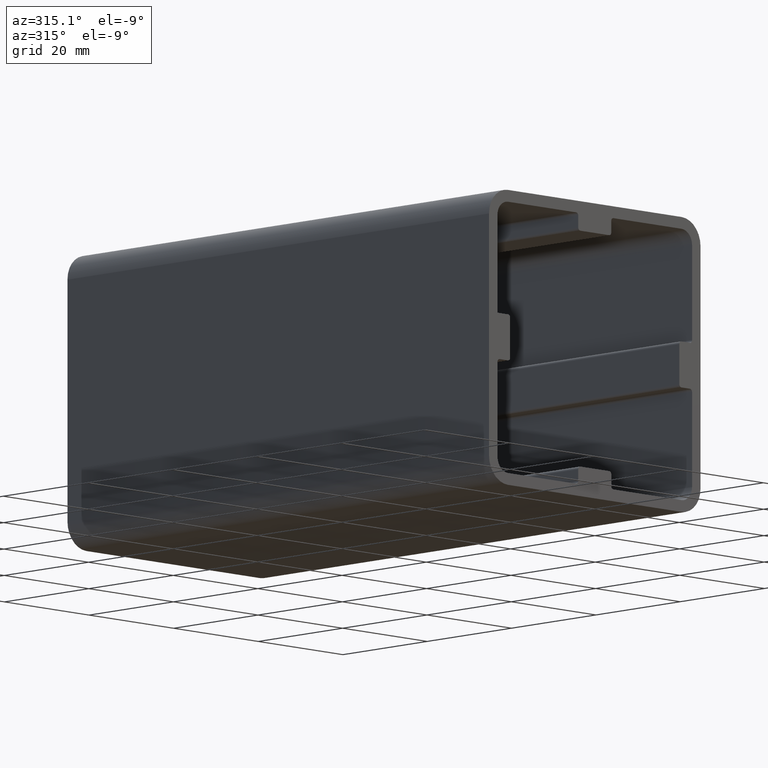
[diagram: clean part render]
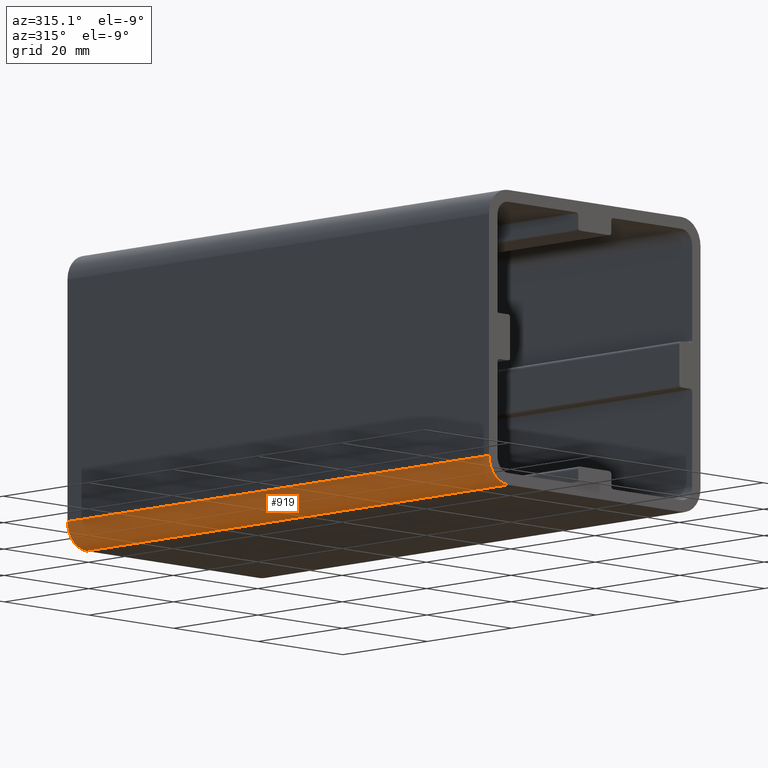
[diagram: same view with one face highlighted and labeled with its STEP entity id]
A machine part, auxiliary view. The second image highlights one B-rep face of the part: STEP entity #919.
In plain terms, the highlighted cylindrical surface (edge-blend (fillet) strip) has radius 4.5 mm, axis along (0, 1, 0).
Its self-contained STEP definition (entity closure, byte-faithful):
#43=FACE_OUTER_BOUND('',#92,.T.);
#92=EDGE_LOOP('',(#614,#615,#616,#617));
#143=LINE('',#1376,#238);
#144=LINE('',#1379,#239);
#238=VECTOR('',#1089,10.);
#239=VECTOR('',#1092,10.);
#333=CIRCLE('',#989,4.5);
#334=CIRCLE('',#990,4.5);
#379=VERTEX_POINT('',#1372);
#380=VERTEX_POINT('',#1373);
#381=VERTEX_POINT('',#1375);
#382=VERTEX_POINT('',#1377);
#473=EDGE_CURVE('',#379,#380,#333,.T.);
#474=EDGE_CURVE('',#380,#381,#143,.T.);
#475=EDGE_CURVE('',#381,#382,#334,.T.);
#476=EDGE_CURVE('',#382,#379,#144,.T.);
#614=ORIENTED_EDGE('',*,*,#473,.T.);
#615=ORIENTED_EDGE('',*,*,#474,.T.);
#616=ORIENTED_EDGE('',*,*,#475,.T.);
#617=ORIENTED_EDGE('',*,*,#476,.T.);
#896=CYLINDRICAL_SURFACE('',#988,4.5);
#919=ADVANCED_FACE('',(#43),#896,.T.);
#988=AXIS2_PLACEMENT_3D('',#1371,#1085,#1086);
#989=AXIS2_PLACEMENT_3D('',#1374,#1087,#1088);
#990=AXIS2_PLACEMENT_3D('',#1378,#1090,#1091);
#1085=DIRECTION('center_axis',(0.,1.,0.));
#1086=DIRECTION('ref_axis',(-0.707106781186548,0.,-0.707106781186548));
#1087=DIRECTION('center_axis',(0.,-1.,0.));
#1088=DIRECTION('ref_axis',(-0.707106781186548,0.,-0.707106781186548));
#1089=DIRECTION('',(0.,-1.,0.));
#1090=DIRECTION('center_axis',(0.,1.,0.));
#1091=DIRECTION('ref_axis',(-0.707106781186548,0.,-0.707106781186548));
#1092=DIRECTION('',(0.,1.,0.));
#1371=CARTESIAN_POINT('Origin',(-20.5,0.,-20.5));
#1372=CARTESIAN_POINT('',(-25.,100.,-20.5));
#1373=CARTESIAN_POINT('',(-20.5,100.,-25.));
#1374=CARTESIAN_POINT('Origin',(-20.5,100.,-20.5));
#1375=CARTESIAN_POINT('',(-20.5,0.,-25.));
#1376=CARTESIAN_POINT('',(-20.5,0.,-25.));
#1377=CARTESIAN_POINT('',(-25.,0.,-20.5));
#1378=CARTESIAN_POINT('Origin',(-20.5,0.,-20.5));
#1379=CARTESIAN_POINT('',(-25.,0.,-20.5));